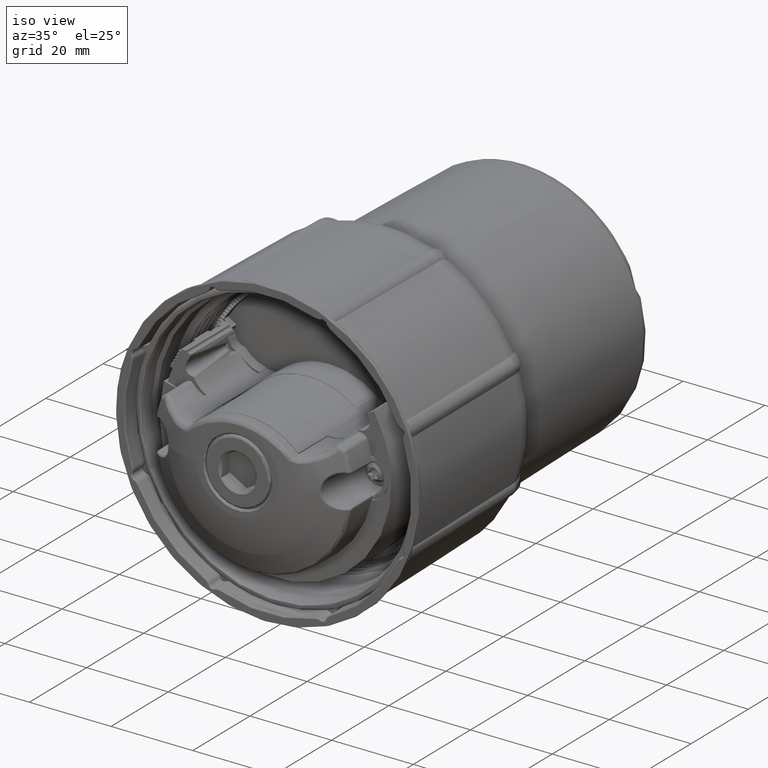
[diagram: clean part render]
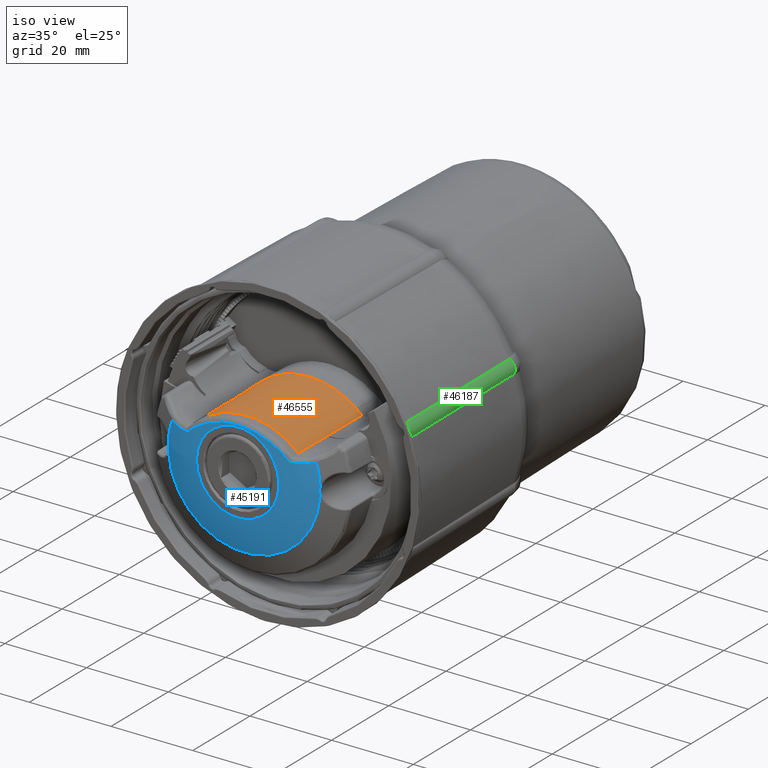
[diagram: same view with three faces highlighted in distinct colors, each labeled with its STEP entity id]
A machine part, iso view with three faces highlighted in distinct colors.
Their STEP definitions:

[orange] entity #46555 — the highlighted conical surface has half-angle 0.5 deg.
#349=CONICAL_SURFACE('',#50596,18.5,0.00872664625997165);
#5385=LINE('',#99631,#8729);
#5386=LINE('',#99634,#8730);
#8729=VECTOR('',#61843,10.);
#8730=VECTOR('',#61846,10.);
#11900=FACE_OUTER_BOUND('',#14613,.T.);
#14613=EDGE_LOOP('',(#42944,#42945,#42946,#42947,#42948,#42949,#42950,#42951,
#42952,#42953,#42954,#42955,#42956,#42957,#42958));
#14798=CIRCLE('',#46776,18.5);
#14802=CIRCLE('',#46781,18.4127313220924);
#14833=CIRCLE('',#46827,18.5);
#15725=CIRCLE('',#49486,18.602977039931);
#16268=CIRCLE('',#50597,18.5043634338954);
#16269=CIRCLE('',#50598,18.602977039931);
#16270=CIRCLE('',#50599,18.602977039931);
#16271=CIRCLE('',#50600,18.602977039931);
#16272=CIRCLE('',#50601,18.534907471163);
#17829=B_SPLINE_CURVE_WITH_KNOTS('',3,(#99442,#99443,#99444,#99445),
 .UNSPECIFIED.,.F.,.F.,(4,4),(166.059143344516,167.137029617328),
 .UNSPECIFIED.);
#17832=B_SPLINE_CURVE_WITH_KNOTS('',3,(#99617,#99618,#99619,#99620),
 .UNSPECIFIED.,.F.,.F.,(4,4),(0.0942220683047243,0.0947220875771163),
 .UNSPECIFIED.);
#17833=B_SPLINE_CURVE_WITH_KNOTS('',2,(#99621,#99622,#99623),
 .UNSPECIFIED.,.F.,.F.,(3,3),(-129.525179130055,-128.571105476766),
 .UNSPECIFIED.);
#17834=B_SPLINE_CURVE_WITH_KNOTS('',2,(#99624,#99625,#99626),
 .UNSPECIFIED.,.F.,.F.,(3,3),(97.2926362606851,98.2467099139744),
 .UNSPECIFIED.);
#18020=VERTEX_POINT('',#65980);
#18033=VERTEX_POINT('',#66008);
#18035=VERTEX_POINT('',#66011);
#18040=VERTEX_POINT('',#66022);
#18041=VERTEX_POINT('',#66024);
#18080=VERTEX_POINT('',#66145);
#20842=VERTEX_POINT('',#84074);
#20844=VERTEX_POINT('',#84080);
#22172=VERTEX_POINT('',#99418);
#22173=VERTEX_POINT('',#99422);
#22180=VERTEX_POINT('',#99440);
#22218=VERTEX_POINT('',#99614);
#22219=VERTEX_POINT('',#99615);
#22220=VERTEX_POINT('',#99630);
#22221=VERTEX_POINT('',#99632);
#22567=EDGE_CURVE('',#18035,#18033,#14798,.T.);
#22572=EDGE_CURVE('',#18040,#18041,#14802,.T.);
#22627=EDGE_CURVE('',#18033,#18080,#14833,.T.);
#26892=EDGE_CURVE('',#20844,#20842,#15725,.T.);
#29103=EDGE_CURVE('',#18020,#22180,#17829,.T.);
#29180=EDGE_CURVE('',#22218,#22219,#16268,.T.);
#29181=EDGE_CURVE('',#18080,#22219,#17832,.T.);
#29182=EDGE_CURVE('',#18035,#18041,#17833,.T.);
#29183=EDGE_CURVE('',#18020,#18040,#17834,.T.);
#29184=EDGE_CURVE('',#20842,#22180,#16269,.T.);
#29185=EDGE_CURVE('',#22172,#20844,#16270,.T.);
#29186=EDGE_CURVE('',#22173,#22172,#16271,.T.);
#29187=EDGE_CURVE('',#22173,#22220,#5385,.T.);
#29188=EDGE_CURVE('',#22220,#22221,#16272,.T.);
#29189=EDGE_CURVE('',#22221,#22218,#5386,.T.);
#42944=ORIENTED_EDGE('',*,*,#29180,.T.);
#42945=ORIENTED_EDGE('',*,*,#29181,.F.);
#42946=ORIENTED_EDGE('',*,*,#22627,.F.);
#42947=ORIENTED_EDGE('',*,*,#22567,.F.);
#42948=ORIENTED_EDGE('',*,*,#29182,.T.);
#42949=ORIENTED_EDGE('',*,*,#22572,.F.);
#42950=ORIENTED_EDGE('',*,*,#29183,.F.);
#42951=ORIENTED_EDGE('',*,*,#29103,.T.);
#42952=ORIENTED_EDGE('',*,*,#29184,.F.);
#42953=ORIENTED_EDGE('',*,*,#26892,.F.);
#42954=ORIENTED_EDGE('',*,*,#29185,.F.);
#42955=ORIENTED_EDGE('',*,*,#29186,.F.);
#42956=ORIENTED_EDGE('',*,*,#29187,.T.);
#42957=ORIENTED_EDGE('',*,*,#29188,.T.);
#42958=ORIENTED_EDGE('',*,*,#29189,.T.);
#46555=ADVANCED_FACE('',(#11900),#349,.T.);
#46776=AXIS2_PLACEMENT_3D('',#66013,#50969,#50970);
#46781=AXIS2_PLACEMENT_3D('',#66025,#50980,#50981);
#46827=AXIS2_PLACEMENT_3D('',#66146,#51092,#51093);
#49486=AXIS2_PLACEMENT_3D('',#84081,#58791,#58792);
#50596=AXIS2_PLACEMENT_3D('',#99613,#61833,#61834);
#50597=AXIS2_PLACEMENT_3D('',#99616,#61835,#61836);
#50598=AXIS2_PLACEMENT_3D('',#99627,#61837,#61838);
#50599=AXIS2_PLACEMENT_3D('',#99628,#61839,#61840);
#50600=AXIS2_PLACEMENT_3D('',#99629,#61841,#61842);
#50601=AXIS2_PLACEMENT_3D('',#99633,#61844,#61845);
#50969=DIRECTION('center_axis',(1.03143563357647E-28,-1.,4.93038065763104E-32));
#50970=DIRECTION('ref_axis',(-1.,-1.03143563357647E-28,2.30661706675248E-44));
#50980=DIRECTION('center_axis',(1.03143563357647E-28,-1.,4.93038065763104E-32));
#50981=DIRECTION('ref_axis',(-0.683531745732003,-7.05378877960786E-29,-0.729920785138059));
#51092=DIRECTION('center_axis',(1.03143563357647E-28,-1.,4.93038065763104E-32));
#51093=DIRECTION('ref_axis',(-1.,-1.03143563357647E-28,2.30661706675248E-44));
#58791=DIRECTION('center_axis',(-3.29244745364641E-16,1.,-1.21783009024435E-16));
#58792=DIRECTION('ref_axis',(-0.683531745732003,-7.05378877960785E-29,-0.729920785138059));
#61833=DIRECTION('center_axis',(-1.03143563357647E-28,1.,-4.93038065763104E-32));
#61834=DIRECTION('ref_axis',(-0.0607325737812664,-6.21496127630694E-30,
0.998154073518664));
#61835=DIRECTION('center_axis',(-1.92944115831719E-15,-1.,2.28390504293741E-16));
#61836=DIRECTION('ref_axis',(-0.683531745732003,-7.05378877960785E-29,-0.729920785138059));
#61837=DIRECTION('center_axis',(-1.03040745637425E-28,1.,-1.50942745213846E-29));
#61838=DIRECTION('ref_axis',(-0.683531745732003,-8.14492454568145E-29,-0.729920785138059));
#61839=DIRECTION('center_axis',(-1.03040745637425E-28,1.,-1.50942745213846E-29));
#61840=DIRECTION('ref_axis',(-0.683531745732003,-8.14492454568145E-29,-0.729920785138059));
#61841=DIRECTION('center_axis',(1.92944115831757E-15,1.,-2.28390504293506E-16));
#61842=DIRECTION('ref_axis',(0.769680129496951,-1.63086380466578E-15,-0.638429712856127));
#61843=DIRECTION('',(0.00902041738572099,-0.999954805651927,-0.00300311901277977));
#61844=DIRECTION('center_axis',(1.92944115831757E-15,1.,-2.28390504293506E-16));
#61845=DIRECTION('ref_axis',(-0.683531745732003,-7.05378877960785E-29,-0.729920785138059));
#61846=DIRECTION('',(0.0102518191421762,-0.999945627278865,-0.00190858328419434));
#65980=CARTESIAN_POINT('',(12.7055154538221,-2.5,6.44692816418265));
#66008=CARTESIAN_POINT('',(-12.9360660127566,-2.49999999999995,6.22528623938267));
#66011=CARTESIAN_POINT('',(-12.7055154538221,-2.5,6.44692816418265));
#66013=CARTESIAN_POINT('Origin',(2.57858908394118E-28,-2.5,-7.));
#66022=CARTESIAN_POINT('',(12.6182467759145,-12.5,6.40927004134714));
#66024=CARTESIAN_POINT('',(-12.6182467759145,-12.5,6.40927004134404));
#66025=CARTESIAN_POINT('Origin',(1.28929454197059E-27,-12.5,-7.));
#66145=CARTESIAN_POINT('',(-14.272463261268,-2.5,4.77059014900079));
#66146=CARTESIAN_POINT('Origin',(2.57858908394118E-28,-2.5,-7.));
#84074=CARTESIAN_POINT('',(11.5819539200514,9.3,7.55778479515353));
#84080=CARTESIAN_POINT('',(-11.5819539200514,9.3,7.55778479515354));
#84081=CARTESIAN_POINT('Origin',(-9.59235139226119E-28,9.29999999999999,
-7.));
#99418=CARTESIAN_POINT('',(-13.0927841317299,9.3,6.21551203806039));
#99422=CARTESIAN_POINT('',(-13.8788456527488,9.30000000000233,5.3874290349283));
#99440=CARTESIAN_POINT('',(12.8113605030189,9.29999999999998,6.48850610000549));
#99442=CARTESIAN_POINT('Ctrl Pts',(12.7055154538221,-2.5,6.44692816418265));
#99443=CARTESIAN_POINT('Ctrl Pts',(12.7410274979547,1.43006786161103,6.46055945982297));
#99444=CARTESIAN_POINT('Ctrl Pts',(12.7763072168205,5.36358128345266,6.47442148251389));
#99445=CARTESIAN_POINT('Ctrl Pts',(12.8113605030189,9.29999999999998,6.48850610000549));
#99613=CARTESIAN_POINT('Origin',(2.57858908394118E-28,-2.5,-7.));
#99614=CARTESIAN_POINT('',(-13.3623051603863,-1.99999999999996,5.80079165108148));
#99615=CARTESIAN_POINT('',(-14.2761310658596,-1.99999999999996,4.77300080202332));
#99616=CARTESIAN_POINT('Origin',(2.06287126715293E-28,-1.99999999999999,
-7.));
#99617=CARTESIAN_POINT('Ctrl Pts',(-14.272463261268,-2.5,4.77059014900079));
#99618=CARTESIAN_POINT('Ctrl Pts',(-14.273686042997,-2.33333333367529,4.77139348467702));
#99619=CARTESIAN_POINT('Ctrl Pts',(-14.2749086445079,-2.16666666700851,
4.77219703569661));
#99620=CARTESIAN_POINT('Ctrl Pts',(-14.2761310658596,-1.99999999999996,
4.77300080202332));
#99621=CARTESIAN_POINT('Ctrl Pts',(-12.7055154538221,-2.5,6.44692816418265));
#99622=CARTESIAN_POINT('Ctrl Pts',(-12.6618199302094,-7.50701106747331,
6.42809910276598));
#99623=CARTESIAN_POINT('Ctrl Pts',(-12.6182467759145,-12.5,6.40927004134404));
#99624=CARTESIAN_POINT('Ctrl Pts',(12.7055154538221,-2.5,6.44692816418265));
#99625=CARTESIAN_POINT('Ctrl Pts',(12.6618199302094,-7.50701106747356,6.42809910276597));
#99626=CARTESIAN_POINT('Ctrl Pts',(12.6182467759145,-12.5,6.40927004134714));
#99627=CARTESIAN_POINT('Origin',(-9.5923513922612E-28,9.3,-7.));
#99628=CARTESIAN_POINT('Origin',(-9.5923513922612E-28,9.3,-7.));
#99629=CARTESIAN_POINT('Origin',(-3.69906523777617E-13,9.3000000000023,
-6.99999999999999));
#99630=CARTESIAN_POINT('',(-13.8084832171555,1.50000000000004,5.36400364793343));
#99631=CARTESIAN_POINT('',(-13.8436644349573,5.40000000058664,5.37571634143258));
#99632=CARTESIAN_POINT('',(-13.3981884784576,1.50000000000004,5.80747205580795));
#99633=CARTESIAN_POINT('Origin',(-1.54715345036472E-28,1.50000000000001,
-7.));
#99634=CARTESIAN_POINT('',(-13.380246819422,-0.249999999999958,5.80413185344472));

[blue] entity #45191 — the highlighted face is a freeform B-spline surface patch.
#20=(
BOUNDED_SURFACE()
B_SPLINE_SURFACE(2,2,((#76052,#76053,#76054,#76055,#76056,#76057,#76058,
#76059,#76060),(#76061,#76062,#76063,#76064,#76065,#76066,#76067,#76068,
#76069),(#76070,#76071,#76072,#76073,#76074,#76075,#76076,#76077,#76078)),
 .UNSPECIFIED.,.F.,.T.,.F.)
B_SPLINE_SURFACE_WITH_KNOTS((3,3),(3,2,2,2,3),(-1.5707963267949,-1.0471537695833),
(-3.14159265358979,-1.5707963267949,0.,1.5707963267949,3.14159265358979),
 .UNSPECIFIED.)
GEOMETRIC_REPRESENTATION_ITEM()
RATIONAL_B_SPLINE_SURFACE(((1.,0.707106781186548,1.,0.707106781186548,1.,
0.707106781186548,1.,0.707106781186548,1.),(0.965920160299957,0.683008695432896,
0.965920160299957,0.683008695432896,0.965920160299957,0.683008695432896,
0.965920160299957,0.683008695432896,0.965920160299957),(1.,0.707106781186548,
1.,0.707106781186548,1.,0.707106781186548,1.,0.707106781186548,1.)))
REPRESENTATION_ITEM('')
SURFACE()
);
#9335=(
BOUNDED_CURVE()
B_SPLINE_CURVE(2,(#76120,#76121,#76122),.UNSPECIFIED.,.F.,.F.)
B_SPLINE_CURVE_WITH_KNOTS((3,3),(1.05625120168388,1.5707963267949),
 .UNSPECIFIED.)
CURVE()
GEOMETRIC_REPRESENTATION_ITEM()
RATIONAL_B_SPLINE_CURVE((0.998836410054997,0.96651224171771,1.))
REPRESENTATION_ITEM('')
);
#10536=FACE_OUTER_BOUND('',#13169,.T.);
#13169=EDGE_LOOP('',(#35847,#35848,#35849,#35850,#35851,#35852,#35853,#35854,
#35855,#35856,#35857,#35858,#35859,#35860,#35861));
#15508=CIRCLE('',#48903,18.6);
#15509=CIRCLE('',#48904,18.6);
#15510=CIRCLE('',#48905,10.1);
#15511=CIRCLE('',#48906,18.6);
#16628=B_SPLINE_CURVE_WITH_KNOTS('',3,(#76081,#76082,#76083,#76084),
 .UNSPECIFIED.,.F.,.F.,(4,4),(6.98007366031523E-5,0.499033117370609),
 .UNSPECIFIED.);
#16629=B_SPLINE_CURVE_WITH_KNOTS('',3,(#76088,#76089,#76090,#76091,#76092),
 .UNSPECIFIED.,.F.,.F.,(4,1,4),(0.,0.5,1.),.UNSPECIFIED.);
#16630=B_SPLINE_CURVE_WITH_KNOTS('',3,(#76094,#76095,#76096,#76097,#76098,
#76099,#76100),.UNSPECIFIED.,.F.,.F.,(4,1,1,1,4),(0.,0.0863998218756621,
0.390933214583775,0.695466607291887,1.),.UNSPECIFIED.);
#16631=B_SPLINE_CURVE_WITH_KNOTS('',3,(#76102,#76103,#76104,#76105),
 .UNSPECIFIED.,.F.,.F.,(4,4),(0.,1.),.UNSPECIFIED.);
#16632=B_SPLINE_CURVE_WITH_KNOTS('',3,(#76107,#76108,#76109,#76110,#76111),
 .UNSPECIFIED.,.F.,.F.,(4,1,4),(0.,0.5,1.),.UNSPECIFIED.);
#16633=B_SPLINE_CURVE_WITH_KNOTS('',3,(#76115,#76116,#76117,#76118),
 .UNSPECIFIED.,.F.,.F.,(4,4),(0.500566233917301,1.),.UNSPECIFIED.);
#16634=B_SPLINE_CURVE_WITH_KNOTS('',3,(#76125,#76126,#76127,#76128),
 .UNSPECIFIED.,.F.,.F.,(4,4),(0.,0.500566233917301),.UNSPECIFIED.);
#16635=B_SPLINE_CURVE_WITH_KNOTS('',3,(#76132,#76133,#76134,#76135),
 .UNSPECIFIED.,.F.,.F.,(4,4),(0.,1.),.UNSPECIFIED.);
#16636=B_SPLINE_CURVE_WITH_KNOTS('',3,(#76136,#76137,#76138,#76139),
 .UNSPECIFIED.,.F.,.F.,(4,4),(0.499033117370609,0.999999471626496),
 .UNSPECIFIED.);
#20116=VERTEX_POINT('',#76079);
#20117=VERTEX_POINT('',#76080);
#20118=VERTEX_POINT('',#76085);
#20119=VERTEX_POINT('',#76087);
#20120=VERTEX_POINT('',#76093);
#20121=VERTEX_POINT('',#76101);
#20122=VERTEX_POINT('',#76106);
#20123=VERTEX_POINT('',#76112);
#20124=VERTEX_POINT('',#76114);
#20125=VERTEX_POINT('',#76119);
#20126=VERTEX_POINT('',#76124);
#20127=VERTEX_POINT('',#76129);
#20128=VERTEX_POINT('',#76131);
#25753=EDGE_CURVE('',#20116,#20117,#16628,.T.);
#25754=EDGE_CURVE('',#20118,#20116,#15508,.T.);
#25755=EDGE_CURVE('',#20119,#20118,#16629,.T.);
#25756=EDGE_CURVE('',#20120,#20119,#16630,.T.);
#25757=EDGE_CURVE('',#20120,#20121,#16631,.T.);
#25758=EDGE_CURVE('',#20122,#20121,#16632,.T.);
#25759=EDGE_CURVE('',#20123,#20122,#15509,.T.);
#25760=EDGE_CURVE('',#20124,#20123,#16633,.T.);
#25761=EDGE_CURVE('',#20124,#20125,#9335,.T.);
#25762=EDGE_CURVE('',#20125,#20125,#15510,.T.);
#25763=EDGE_CURVE('',#20126,#20124,#16634,.T.);
#25764=EDGE_CURVE('',#20127,#20126,#15511,.T.);
#25765=EDGE_CURVE('',#20128,#20127,#16635,.T.);
#25766=EDGE_CURVE('',#20117,#20128,#16636,.T.);
#35847=ORIENTED_EDGE('',*,*,#25753,.F.);
#35848=ORIENTED_EDGE('',*,*,#25754,.F.);
#35849=ORIENTED_EDGE('',*,*,#25755,.F.);
#35850=ORIENTED_EDGE('',*,*,#25756,.F.);
#35851=ORIENTED_EDGE('',*,*,#25757,.T.);
#35852=ORIENTED_EDGE('',*,*,#25758,.F.);
#35853=ORIENTED_EDGE('',*,*,#25759,.F.);
#35854=ORIENTED_EDGE('',*,*,#25760,.F.);
#35855=ORIENTED_EDGE('',*,*,#25761,.T.);
#35856=ORIENTED_EDGE('',*,*,#25762,.T.);
#35857=ORIENTED_EDGE('',*,*,#25761,.F.);
#35858=ORIENTED_EDGE('',*,*,#25763,.F.);
#35859=ORIENTED_EDGE('',*,*,#25764,.F.);
#35860=ORIENTED_EDGE('',*,*,#25765,.F.);
#35861=ORIENTED_EDGE('',*,*,#25766,.F.);
#45191=ADVANCED_FACE('',(#10536),#20,.F.);
#48903=AXIS2_PLACEMENT_3D('',#76086,#57125,#57126);
#48904=AXIS2_PLACEMENT_3D('',#76113,#57127,#57128);
#48905=AXIS2_PLACEMENT_3D('',#76123,#57129,#57130);
#48906=AXIS2_PLACEMENT_3D('',#76130,#57131,#57132);
#57125=DIRECTION('center_axis',(1.92944115831757E-15,1.,-2.28390504293506E-16));
#57126=DIRECTION('ref_axis',(-9.5953275564132E-16,-2.28390504293504E-16,
-1.));
#57127=DIRECTION('center_axis',(1.92944115831757E-15,1.,-2.28390504293506E-16));
#57128=DIRECTION('ref_axis',(-9.5953275564132E-16,-2.28390504293504E-16,
-1.));
#57129=DIRECTION('center_axis',(1.92944115831757E-15,1.,-2.28390504293506E-16));
#57130=DIRECTION('ref_axis',(-9.5953275564132E-16,-2.28390504293504E-16,
-1.));
#57131=DIRECTION('center_axis',(1.92944115831757E-15,1.,-2.28390504293506E-16));
#57132=DIRECTION('ref_axis',(-9.5953275564132E-16,-2.28390504293504E-16,
-1.));
#76052=CARTESIAN_POINT('Ctrl Pts',(-10.1000000000004,-15.7000000000001,
2.03899252550644E-14));
#76053=CARTESIAN_POINT('Ctrl Pts',(-10.1000000000004,-15.7,10.1));
#76054=CARTESIAN_POINT('Ctrl Pts',(-4.263764497564E-13,-15.7000000000001,
10.1));
#76055=CARTESIAN_POINT('Ctrl Pts',(10.0999999999996,-15.7000000000001,10.1));
#76056=CARTESIAN_POINT('Ctrl Pts',(10.0999999999996,-15.7000000000001,1.00736359110977E-15));
#76057=CARTESIAN_POINT('Ctrl Pts',(10.0999999999996,-15.7000000000001,-10.1));
#76058=CARTESIAN_POINT('Ctrl Pts',(-4.45759011420355E-13,-15.7000000000001,
-10.1));
#76059=CARTESIAN_POINT('Ctrl Pts',(-10.1000000000004,-15.7000000000001,
-10.1));
#76060=CARTESIAN_POINT('Ctrl Pts',(-10.1000000000004,-15.7000000000001,
2.03899252550644E-14));
#76061=CARTESIAN_POINT('Ctrl Pts',(-14.6555351360987,-15.7,2.47611104376256E-14));
#76062=CARTESIAN_POINT('Ctrl Pts',(-14.6555351360986,-15.7,14.6555351360982));
#76063=CARTESIAN_POINT('Ctrl Pts',(-4.22005264573839E-13,-15.7000000000001,
14.6555351360982));
#76064=CARTESIAN_POINT('Ctrl Pts',(14.6555351360978,-15.7000000000001,14.6555351360982));
#76065=CARTESIAN_POINT('Ctrl Pts',(14.6555351360978,-15.7000000000001,-3.36382159145141E-15));
#76066=CARTESIAN_POINT('Ctrl Pts',(14.6555351360978,-15.7000000000001,-14.6555351360982));
#76067=CARTESIAN_POINT('Ctrl Pts',(-4.50130196602916E-13,-15.7000000000001,
-14.6555351360982));
#76068=CARTESIAN_POINT('Ctrl Pts',(-14.6555351360987,-15.7,-14.6555351360982));
#76069=CARTESIAN_POINT('Ctrl Pts',(-14.6555351360987,-15.7,2.47611104376256E-14));
#76070=CARTESIAN_POINT('Ctrl Pts',(-18.6006445636724,-13.4220597065124,
2.80263122255918E-14));
#76071=CARTESIAN_POINT('Ctrl Pts',(-18.6006445636723,-13.4220597065124,
18.600644563672));
#76072=CARTESIAN_POINT('Ctrl Pts',(-4.13824651095048E-13,-13.4220597065124,
18.6006445636719));
#76073=CARTESIAN_POINT('Ctrl Pts',(18.6006445636715,-13.4220597065125,18.6006445636719));
#76074=CARTESIAN_POINT('Ctrl Pts',(18.6006445636715,-13.4220597065125,-7.6695432441779E-15));
#76075=CARTESIAN_POINT('Ctrl Pts',(18.6006445636715,-13.4220597065125,-18.6006445636719));
#76076=CARTESIAN_POINT('Ctrl Pts',(-4.49520506564817E-13,-13.4220597065124,
-18.6006445636719));
#76077=CARTESIAN_POINT('Ctrl Pts',(-18.6006445636724,-13.4220597065124,
-18.6006445636719));
#76078=CARTESIAN_POINT('Ctrl Pts',(-18.6006445636724,-13.4220597065124,
2.80263122255918E-14));
#76079=CARTESIAN_POINT('',(18.5717213884624,-13.4219437819278,1.03656872324217));
#76080=CARTESIAN_POINT('',(18.4684078884271,-13.4968993800983,-5.2249858059088E-6));
#76081=CARTESIAN_POINT('Ctrl Pts',(18.5716924473646,-13.4219647923338,1.036426089091));
#76082=CARTESIAN_POINT('Ctrl Pts',(18.5027364533258,-13.4720247319237,0.696556432866085));
#76083=CARTESIAN_POINT('Ctrl Pts',(18.4682111843411,-13.4961430472652,0.348223712334838));
#76084=CARTESIAN_POINT('Ctrl Pts',(18.4684078884271,-13.4968993800983,-5.2249858059088E-6));
#76085=CARTESIAN_POINT('',(17.5729459889713,-13.4224318643354,6.09520871412012));
#76086=CARTESIAN_POINT('Origin',(-4.31673296886554E-13,-13.4224318643355,
1.01784694880198E-14));
#76087=CARTESIAN_POINT('',(12.5439790027864,-15.31835383336,5.46298049148295));
#76088=CARTESIAN_POINT('Ctrl Pts',(12.5439790027864,-15.31835383336,5.46298049148295));
#76089=CARTESIAN_POINT('Ctrl Pts',(13.4326318150771,-15.1507374451713,5.37009359469346));
#76090=CARTESIAN_POINT('Ctrl Pts',(15.1985679036345,-14.6733815523536,5.4023234265618));
#76091=CARTESIAN_POINT('Ctrl Pts',(16.833729279162,-13.8774855971637,5.8212457028869));
#76092=CARTESIAN_POINT('Ctrl Pts',(17.5729459889713,-13.4224318643354,6.09520871412012));
#76093=CARTESIAN_POINT('',(-11.2423264456658,-15.4443207674253,6.60349430905586));
#76094=CARTESIAN_POINT('Ctrl Pts',(-11.2423264456658,-15.4443207674253,
6.60349430905586));
#76095=CARTESIAN_POINT('Ctrl Pts',(-10.6494610516146,-15.4923699580064,
7.07449623187704));
#76096=CARTESIAN_POINT('Ctrl Pts',(-7.83404220267297,-15.6692254509908,
9.03538231833742));
#76097=CARTESIAN_POINT('Ctrl Pts',(-2.00701128684506,-15.6943901837567,
10.964545165023));
#76098=CARTESIAN_POINT('Ctrl Pts',(5.94914773444246,-15.7093394108302,10.1227784124693));
#76099=CARTESIAN_POINT('Ctrl Pts',(10.6262968980577,-15.5379532089424,7.31468610510834));
#76100=CARTESIAN_POINT('Ctrl Pts',(12.5439790027864,-15.31835383336,5.46298049148295));
#76101=CARTESIAN_POINT('',(-12.5439790027447,-15.3183538333679,5.46298049148743));
#76102=CARTESIAN_POINT('Ctrl Pts',(-11.2423264456658,-15.4443207674253,
6.60349430905586));
#76103=CARTESIAN_POINT('Ctrl Pts',(-11.6801954101016,-15.4088172829657,
6.25562597957722));
#76104=CARTESIAN_POINT('Ctrl Pts',(-12.1156014516835,-15.3674085971834,
5.87662001712305));
#76105=CARTESIAN_POINT('Ctrl Pts',(-12.5439790027447,-15.3183538333679,
5.46298049148743));
#76106=CARTESIAN_POINT('',(-17.5729459889758,-13.4224318643308,6.09520871412159));
#76107=CARTESIAN_POINT('Ctrl Pts',(-17.5729459889758,-13.4224318643308,
6.09520871412159));
#76108=CARTESIAN_POINT('Ctrl Pts',(-16.8337296384239,-13.8774853760069,
5.82124583603321));
#76109=CARTESIAN_POINT('Ctrl Pts',(-15.1987456849492,-14.6734400812023,
5.40223914649915));
#76110=CARTESIAN_POINT('Ctrl Pts',(-13.4326333248475,-15.150737160403,5.37009343688057));
#76111=CARTESIAN_POINT('Ctrl Pts',(-12.5439790027447,-15.3183538333679,
5.46298049148743));
#76112=CARTESIAN_POINT('',(-18.5708406025928,-13.4225139211516,1.03767094591645));
#76113=CARTESIAN_POINT('Origin',(-4.31673296886554E-13,-13.4224318643355,
1.01784694880198E-14));
#76114=CARTESIAN_POINT('',(-18.4675264877881,-13.4974477716122,2.51529933539225E-7));
#76115=CARTESIAN_POINT('Ctrl Pts',(-18.4675264877881,-13.4974477716122,
2.51529933539225E-7));
#76116=CARTESIAN_POINT('Ctrl Pts',(-18.4672940590911,-13.4967667205963,
0.348900232329327));
#76117=CARTESIAN_POINT('Ctrl Pts',(-18.5020243408534,-13.4724962431029,
0.697889838430852));
#76118=CARTESIAN_POINT('Ctrl Pts',(-18.5708406025928,-13.4225139211516,
1.03767094591645));
#76119=CARTESIAN_POINT('',(-10.1000000000004,-15.7,2.16268185222032E-14));
#76120=CARTESIAN_POINT('Ctrl Pts',(-18.4678166146081,-13.4979608427748,
2.79161945563875E-14));
#76121=CARTESIAN_POINT('Ctrl Pts',(-14.5736479534557,-15.7,2.46825370036125E-14));
#76122=CARTESIAN_POINT('Ctrl Pts',(-10.1000000000004,-15.7000000000001,
2.03899252550644E-14));
#76123=CARTESIAN_POINT('Origin',(-4.36067730588377E-13,-15.7,1.06986444230871E-14));
#76124=CARTESIAN_POINT('',(-18.5700737487076,-13.4230286264001,-1.03955130524988));
#76125=CARTESIAN_POINT('Ctrl Pts',(-18.5704479345119,-13.4236568036332,
-1.03935736084424));
#76126=CARTESIAN_POINT('Ctrl Pts',(-18.5004980417966,-13.4738834888337,
-0.699383381771039));
#76127=CARTESIAN_POINT('Ctrl Pts',(-18.466452636454,-13.4975135457674,-0.349689535250141));
#76128=CARTESIAN_POINT('Ctrl Pts',(-18.4675264877881,-13.4974477716122,
2.51529933539225E-7));
#76129=CARTESIAN_POINT('',(18.5705760083243,-13.4224335481976,-1.04575246782182));
#76130=CARTESIAN_POINT('Origin',(-4.31673296886554E-13,-13.4224318643355,
1.01784694880198E-14));
#76131=CARTESIAN_POINT('',(18.5692082261498,-13.4238461593794,-1.03926765705384));
#76132=CARTESIAN_POINT('Ctrl Pts',(18.569030468561,-13.4235344709996,-1.03925790344429));
#76133=CARTESIAN_POINT('Ctrl Pts',(18.569839983507,-13.4230004871555,-1.04135014771009));
#76134=CARTESIAN_POINT('Ctrl Pts',(18.570207864977,-13.4227172457041,-1.04355021565439));
#76135=CARTESIAN_POINT('Ctrl Pts',(18.5705758305839,-13.4224336743822,-1.0457517368146));
#76136=CARTESIAN_POINT('Ctrl Pts',(18.4684078884271,-13.4968993800983,-5.2249858059088E-6));
#76137=CARTESIAN_POINT('Ctrl Pts',(18.4672564591798,-13.4969646236578,-0.349630605246003));
#76138=CARTESIAN_POINT('Ctrl Pts',(18.5011019293424,-13.4734802390204,-0.699247661719255));
#76139=CARTESIAN_POINT('Ctrl Pts',(18.5693109333796,-13.4240216873398,-1.03927253649149));

[green] entity #46187 — the highlighted face is a freeform B-spline surface patch.
#57=(
BOUNDED_SURFACE()
B_SPLINE_SURFACE(1,2,((#92942,#92943,#92944),(#92945,#92946,#92947)),
 .UNSPECIFIED.,.F.,.F.,.F.)
B_SPLINE_SURFACE_WITH_KNOTS((2,2),(3,3),(3.28527118683345,20.0269898594535),
(0.785398163397446,2.35619449019235),.UNSPECIFIED.)
GEOMETRIC_REPRESENTATION_ITEM()
RATIONAL_B_SPLINE_SURFACE(((1.,0.707106781186546,1.),(1.,0.707106781186546,
1.)))
REPRESENTATION_ITEM('')
SURFACE()
);
#2133=ELLIPSE('',#50135,2.25008294100768,2.24974024247724);
#5276=LINE('',#92949,#8620);
#5277=LINE('',#92952,#8621);
#8620=VECTOR('',#60802,10.);
#8621=VECTOR('',#60805,10.);
#11532=FACE_OUTER_BOUND('',#14215,.T.);
#14215=EDGE_LOOP('',(#40981,#40982,#40983,#40984,#40985,#40986,#40987));
#15958=CIRCLE('',#50088,2.25008294100768);
#15985=CIRCLE('',#50125,2.25008294100768);
#17453=B_SPLINE_CURVE_WITH_KNOTS('',3,(#92474,#92475,#92476,#92477,#92478,
#92479,#92480,#92481,#92482,#92483,#92484,#92485,#92486,#92487),
 .UNSPECIFIED.,.F.,.F.,(4,2,2,2,2,2,4),(-0.19432983303084,-0.190921260049038,
-0.180485839263172,-0.157825585677695,-0.0973214250680815,5.55111512312578E-17,
0.000753443282224083),.UNSPECIFIED.);
#17469=B_SPLINE_CURVE_WITH_KNOTS('',3,(#92775,#92776,#92777,#92778,#92779,
#92780,#92781,#92782,#92783,#92784,#92785,#92786,#92787,#92788),
 .UNSPECIFIED.,.F.,.F.,(4,2,2,2,2,2,4),(-0.606530411476879,-0.605840326168312,
-0.526766505791719,-0.474661708650142,-0.447765153694613,-0.427368112671748,
-0.422703194548063),.UNSPECIFIED.);
#21776=VERTEX_POINT('',#92472);
#21777=VERTEX_POINT('',#92473);
#21780=VERTEX_POINT('',#92509);
#21815=VERTEX_POINT('',#92774);
#21822=VERTEX_POINT('',#92838);
#21837=VERTEX_POINT('',#92948);
#21838=VERTEX_POINT('',#92950);
#28345=EDGE_CURVE('',#21776,#21777,#17453,.F.);
#28349=EDGE_CURVE('',#21780,#21777,#15958,.T.);
#28396=EDGE_CURVE('',#21776,#21815,#17469,.T.);
#28405=EDGE_CURVE('',#21815,#21822,#15985,.T.);
#28425=EDGE_CURVE('',#21822,#21837,#5276,.T.);
#28426=EDGE_CURVE('',#21837,#21838,#2133,.T.);
#28427=EDGE_CURVE('',#21780,#21838,#5277,.T.);
#40981=ORIENTED_EDGE('',*,*,#28349,.T.);
#40982=ORIENTED_EDGE('',*,*,#28345,.F.);
#40983=ORIENTED_EDGE('',*,*,#28396,.T.);
#40984=ORIENTED_EDGE('',*,*,#28405,.T.);
#40985=ORIENTED_EDGE('',*,*,#28425,.T.);
#40986=ORIENTED_EDGE('',*,*,#28426,.T.);
#40987=ORIENTED_EDGE('',*,*,#28427,.F.);
#46187=ADVANCED_FACE('',(#11532),#57,.F.);
#50088=AXIS2_PLACEMENT_3D('',#92510,#60689,#60690);
#50125=AXIS2_PLACEMENT_3D('',#92840,#60774,#60775);
#50135=AXIS2_PLACEMENT_3D('',#92951,#60803,#60804);
#60689=DIRECTION('center_axis',(3.18346630714809E-16,1.,-1.57696261183534E-16));
#60690=DIRECTION('ref_axis',(0.923879532511286,-2.32538616351413E-16,0.382683432365091));
#60774=DIRECTION('center_axis',(3.18346630714809E-16,1.,-1.57696261183534E-16));
#60775=DIRECTION('ref_axis',(0.923879532511286,-2.32538616351413E-16,0.382683432365091));
#60802=DIRECTION('',(-0.0161239211004742,0.999847695156391,-0.00667874679845009));
#60803=DIRECTION('center_axis',(0.0161239211004742,-0.999847695156391,0.00667874679845009));
#60804=DIRECTION('ref_axis',(-0.382683432365091,-5.61983931827554E-17,0.923879532511286));
#60805=DIRECTION('',(-0.0161239211004742,0.999847695156391,-0.00667874679845009));
#92472=CARTESIAN_POINT('',(34.272965009633,-4.66972982243973,14.1963269297285));
#92473=CARTESIAN_POINT('',(33.0935037313372,-4.0802012663021,15.3896836223578));
#92474=CARTESIAN_POINT('Ctrl Pts',(33.0935037313372,-4.0802012663021,15.3896836223578));
#92475=CARTESIAN_POINT('Ctrl Pts',(33.1029794192642,-4.0802012663021,15.3854997216464));
#92476=CARTESIAN_POINT('Ctrl Pts',(33.1124269102006,-4.08031780551178,15.3812516739174));
#92477=CARTESIAN_POINT('Ctrl Pts',(33.1506683015726,-4.08124384329799,15.3637447089406));
#92478=CARTESIAN_POINT('Ctrl Pts',(33.1792081730677,-4.08298616633363,15.3499560896641));
#92479=CARTESIAN_POINT('Ctrl Pts',(33.2685361581022,-4.09139505056181,15.3045038035638));
#92480=CARTESIAN_POINT('Ctrl Pts',(33.3280648296195,-4.10143823179942,15.2707452498723));
#92481=CARTESIAN_POINT('Ctrl Pts',(33.5384157624497,-4.1498304035226,15.1389169509));
#92482=CARTESIAN_POINT('Ctrl Pts',(33.6773855943662,-4.20738044702177,15.0264052052469));
#92483=CARTESIAN_POINT('Ctrl Pts',(33.9940200412199,-4.38191982402419,14.7057338906658));
#92484=CARTESIAN_POINT('Ctrl Pts',(34.1561617048711,-4.52121526085925,14.4692445538628));
#92485=CARTESIAN_POINT('Ctrl Pts',(34.2712066945443,-4.6674822885529,14.2004605755788));
#92486=CARTESIAN_POINT('Ctrl Pts',(34.2720874050458,-4.66860602796121,14.1983943957938));
#92487=CARTESIAN_POINT('Ctrl Pts',(34.272965009633,-4.66972982243973,14.1963269297285));
#92509=CARTESIAN_POINT('',(33.0457219370724,-4.0802012663021,15.4101251306874));
#92510=CARTESIAN_POINT('Origin',(32.1846524741015,-4.0802012663021,13.3313195550376));
#92774=CARTESIAN_POINT('',(34.2827905513356,-4.0802012663021,12.5184912519661));
#92775=CARTESIAN_POINT('Ctrl Pts',(34.2729650096329,-4.66972982243973,14.1963269297285));
#92776=CARTESIAN_POINT('Ctrl Pts',(34.2737356448662,-4.66870049310854,14.1944195016362));
#92777=CARTESIAN_POINT('Ctrl Pts',(34.2745036744941,-4.66767121003442,14.1925109941967));
#92778=CARTESIAN_POINT('Ctrl Pts',(34.3629754106505,-4.54870744611957,13.9717909389239));
#92779=CARTESIAN_POINT('Ctrl Pts',(34.4169753988625,-4.43046004710762,13.7375355536303));
#92780=CARTESIAN_POINT('Ctrl Pts',(34.4432821978064,-4.26193113887275,13.3368287705543));
#92781=CARTESIAN_POINT('Ctrl Pts',(34.4371604638823,-4.20148619686206,13.1728286573315));
#92782=CARTESIAN_POINT('Ctrl Pts',(34.3999264471022,-4.13288392002178,12.923599782421));
#92783=CARTESIAN_POINT('Ctrl Pts',(34.3822634204907,-4.11349645315329,12.8381640588144));
#92784=CARTESIAN_POINT('Ctrl Pts',(34.3422862983144,-4.08990326810353,12.6890581389667));
#92785=CARTESIAN_POINT('Ctrl Pts',(34.3220689969828,-4.08313483545052,12.6249064755584));
#92786=CARTESIAN_POINT('Ctrl Pts',(34.2937677522645,-4.08045860932684,12.5472549697771));
#92787=CARTESIAN_POINT('Ctrl Pts',(34.2883511896937,-4.0802012663021,12.5328448208917));
#92788=CARTESIAN_POINT('Ctrl Pts',(34.2827905513356,-4.0802012663021,12.5184912519661));
#92838=CARTESIAN_POINT('',(34.2634580497513,-4.0802012663021,12.4702500920667));
#92840=CARTESIAN_POINT('Origin',(32.1846524741015,-4.0802012663021,13.3313195550376));
#92942=CARTESIAN_POINT('Ctrl Pts',(33.0554143499385,-4.68122980050869,15.4141398595487));
#92943=CARTESIAN_POINT('Ctrl Pts',(35.1337722024782,-4.65346639748762,14.5528849435933));
#92944=CARTESIAN_POINT('Ctrl Pts',(34.2731504626174,-4.68122980050869,12.4742648209279));
#92945=CARTESIAN_POINT('Ctrl Pts',(32.4480221209963,32.9832884255174,15.1625497606408));
#92946=CARTESIAN_POINT('Ctrl Pts',(34.5263799735359,33.0110518285384,14.3012948446854));
#92947=CARTESIAN_POINT('Ctrl Pts',(33.6657582336751,32.9832884255174,12.22267472202));
#92948=CARTESIAN_POINT('',(33.6657582336751,32.9832884255174,12.22267472202));
#92949=CARTESIAN_POINT('',(34.3927883494062,-12.0999999999999,12.5238204562095));
#92950=CARTESIAN_POINT('',(32.4480221209963,32.9832884255174,15.1625497606408));
#92951=CARTESIAN_POINT('Origin',(31.5874003811355,32.9555250224963,13.0839296379754));
#92952=CARTESIAN_POINT('',(33.1750522367273,-12.0999999999999,15.4636954948302));